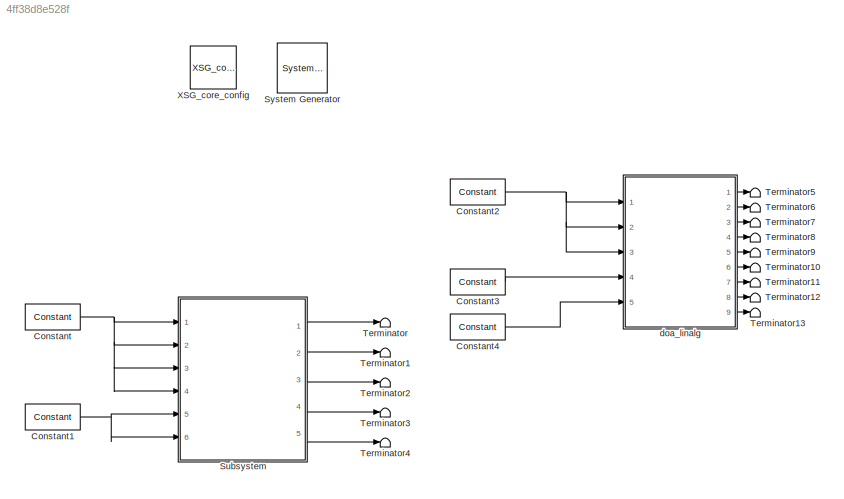
MODEL slx_4ff38d8e528f
KIND model
BLOCK [Reference]  System Generator  REF=xbsIndex_r4/ System Generator
  AttributesFormatString = System\nGenerator
  Impl_file = ISE Defaults
  Ports = []
  SourceBlock = xbsIndex_r4/ System Generator
  SourceType = Xilinx System Generator Block
  Synth_file = XST Defaults
  Tag = genX
  UserDataPersistent = on
  block_type = sysgen
  clock_wrapper = Clock Enables
  core_generation = According to Block Masks
  dbl_ovrd = According to Block Masks
  dcm_input_clock_period = 10
  deprecated_control = off
  directory = ./netlist
  eval_field = 0
  has_advanced_control = 0
  incr_netlist = off
  infoedit = System Generator
  package = fbg676
  part = xc7k325t
  proj_type = Project Navigator
  run_coregen = off
  sg_icon_stat = 50,50,0,0,token,white,0,58c5b5770fe5f7c311f53dbc6e73f0f6,right,,[ ],[ ]
  sg_mask_display = fprintf('','COMMENT: begin icon graphics');\npatch([0 50 50 0 0 ],[0 0 50 50 0 ],[1 1 1 ]);\npatch([1.6375 16.81 27.31 37.81 48.31 27.31 12.1375 1.6375 ],[36.655 36.655 47.155 36.655 47.155 47.155 47.155 36.655 ],[0.933333 0.203922 0.141176 ]);\npatch([12.1375 27.31 16.81 1.6375 12.1375 ],[26.155 26.155 36.655 36.655 26.155 ],[0.698039 0.0313725 0.219608 ]);\npatch([1.6375 16.81 27.31 12.1375 1.6375 ]...<+327ch>
  sggui_pos = -1,-1,-1,-1
  simulink_period = 1
  speed = -3
  synthesis_tool = XST
  sysclk_period = 10
  testbench = off
  trim_vbits = Everywhere in SubSystem
  xilinxfamily = Kintex7
BLOCK [Reference] Constant  REF=xbsIndex_r4/Constant
  Ports = [0, 1]
  SourceBlock = xbsIndex_r4/Constant
  SourceType = Xilinx Constant Block Block
  arith_type = Unsigned
  bin_pt = 0
  block_type = constant
  carry = CIN
  const = 1
  dbl_ovrd = off
  dsp48_infoedit = The use of this block for DSP48 instructions is deprecated.  Please use the Opmode block.
  equ = P=C
  exp_width = 8
  explicit_period = on
  frac_width = 24
  gui_display_data_type = Fixed-point
  has_advanced_control = 0
  inp1 = P
  inp2 = PCIN>>17
  n_bits = 18*4
  opr = +
  opselect = C
  period = 1
  preci_type = Single
  sg_icon_stat = 55,26,0,1,white,blue,0,1c72b5be,right,,[ ],[ ]
  sg_mask_display = fprintf('','COMMENT: begin icon graphics');\npatch([0 55 55 0 0 ],[0 0 26 26 0 ],[0.77 0.82 0.91 ]);\nplot([0 55 55 0 0 ],[0 0 26 26 0 ]);\npatch([20.325 24.66 27.66 30.66 33.66 27.66 23.325 20.325 ],[16.33 16.33 19.33 16.33 19.33 19.33 19.33 16.33 ],[1 1 1 ]);\npatch([23.325 27.66 24.66 20.325 23.325 ],[13.33 13.33 16.33 16.33 13.33 ],[0.931 0.946 0.973 ]);\npatch([20.325 24.66 27.66 23.325 20.325 ],[...<+323ch>  <repeated x5 — deduplicated; at blocks: Constant, Constant1, Constant2, Constant3, Constant4>
  sggui_pos = 77,39,337,463
BLOCK [Reference] Constant1  REF=xbsIndex_r4/Constant
  Ports = [0, 1]
  SourceBlock = xbsIndex_r4/Constant
  SourceType = Xilinx Constant Block Block
  arith_type = Boolean
  bin_pt = 0
  block_type = constant
  carry = CIN
  const = 1
  dbl_ovrd = off
  dsp48_infoedit = The use of this block for DSP48 instructions is deprecated.  Please use the Opmode block.
  equ = P=C
  exp_width = 8
  explicit_period = on
  frac_width = 24
  gui_display_data_type = Boolean
  has_advanced_control = 0
  inp1 = P
  inp2 = PCIN>>17
  n_bits = 18*4
  opr = +
  opselect = C
  period = 1
  preci_type = Single
  sg_icon_stat = 55,26,0,1,white,blue,0,1c72b5be,right,,[ ],[ ]
  sggui_pos = 67,31,337,463
BLOCK [Reference] Constant2  REF=xbsIndex_r4/Constant
  Ports = [0, 1]
  SourceBlock = xbsIndex_r4/Constant
  SourceType = Xilinx Constant Block Block
  arith_type = Signed (2's comp)
  bin_pt = 14
  block_type = constant
  carry = CIN
  const = 1
  dbl_ovrd = off
  dsp48_infoedit = The use of this block for DSP48 instructions is deprecated.  Please use the Opmode block.
  equ = P=C
  exp_width = 8
  explicit_period = on
  frac_width = 24
  gui_display_data_type = Fixed-point
  has_advanced_control = 0
  inp1 = P
  inp2 = PCIN>>17
  n_bits = 32
  opr = +
  opselect = C
  period = 1
  preci_type = Single
  sg_icon_stat = 55,26,0,1,white,blue,0,1c72b5be,right,,[ ],[ ]
  sggui_pos = 20,20,337,463
BLOCK [Reference] Constant3  REF=xbsIndex_r4/Constant
  Ports = [0, 1]
  SourceBlock = xbsIndex_r4/Constant
  SourceType = Xilinx Constant Block Block
  arith_type = Boolean
  bin_pt = 14
  block_type = constant
  carry = CIN
  const = 1
  dbl_ovrd = off
  dsp48_infoedit = The use of this block for DSP48 instructions is deprecated.  Please use the Opmode block.
  equ = P=C
  exp_width = 8
  explicit_period = on
  frac_width = 24
  gui_display_data_type = Boolean
  has_advanced_control = 0
  inp1 = P
  inp2 = PCIN>>17
  n_bits = 32
  opr = +
  opselect = C
  period = 1
  preci_type = Single
  sg_icon_stat = 55,26,0,1,white,blue,0,1c72b5be,right,,[ ],[ ]
  sggui_pos = 20,20,337,463
BLOCK [Reference] Constant4  REF=xbsIndex_r4/Constant
  Ports = [0, 1]
  SourceBlock = xbsIndex_r4/Constant
  SourceType = Xilinx Constant Block Block
  arith_type = Unsigned
  bin_pt = 0
  block_type = constant
  carry = CIN
  const = 1
  dbl_ovrd = off
  dsp48_infoedit = The use of this block for DSP48 instructions is deprecated.  Please use the Opmode block.
  equ = P=C
  exp_width = 8
  explicit_period = on
  frac_width = 24
  gui_display_data_type = Fixed-point
  has_advanced_control = 0
  inp1 = P
  inp2 = PCIN>>17
  n_bits = 4
  opr = +
  opselect = C
  period = 1
  preci_type = Single
  sg_icon_stat = 55,26,0,1,white,blue,0,1c72b5be,right,,[ ],[ ]
  sggui_pos = 20,20,337,463
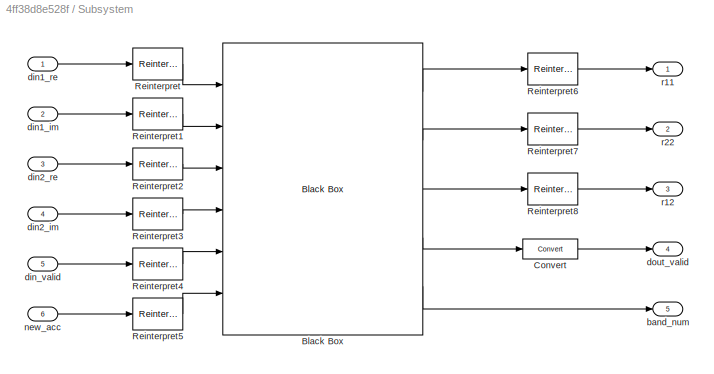
BLOCK [SubSystem] Subsystem
  FunctionWithSeparateData = off
  MaskHideContents = off
  MinAlgLoopOccurrences = off
  Opaque = off
  Ports = [6, 5]
  PropExecContextOutsideSubsystem = off
  RTWSystemCode = Auto
  RequestExecContextInheritance = off
BLOCK [Reference] Subsystem/Black Box  REF=xbsIndex_r4/Black Box
  Ports = [6, 5]
  SourceBlock = xbsIndex_r4/Black Box
  SourceType = Xilinx Black Box Block
  block_type = blackbox2
  has_advanced_control = 0
  infoedit = Incorporates black box HDL and simulation model into a System Generator design.<br><br>You must supply a Black Box with certain information about the HDL component you would like to bring into System Generator. This information is provided through a Matlab function.<br><br>When "Simulation mode" is set to "Inactive", you will typically want to provide a separate simulation model by using a Simulat...<+126ch>
  init_code = band_doa_no_la_config
  sg_icon_stat = 200,292,6,5,white,blue,0,0cbbbc98,right,,[ ],[ ]
  sg_mask_display = fprintf('','COMMENT: begin icon graphics');\npatch([0 200 200 0 0 ],[0 0 292 292 0 ],[0.77 0.82 0.91 ]);\nplot([0 200 200 0 0 ],[0 0 292 292 0 ]);\npatch([37.7 78.16 106.16 134.16 162.16 106.16 65.7 37.7 ],[177.08 177.08 205.08 177.08 205.08 205.08 205.08 177.08 ],[1 1 1 ]);\npatch([65.7 106.16 78.16 37.7 65.7 ],[149.08 149.08 177.08 177.08 149.08 ],[0.931 0.946 0.973 ]);\npatch([37.7 78.16 106.16 65.7...<+828ch>
  sggui_pos = -1,-1,-1,-1
  sim_method = Inactive
  verbose = off
  xl_area = [0,0,0,0,0,0,0]
  xl_use_area = off
BLOCK [Reference] Subsystem/Convert  REF=xbsIndex_r4/Convert
  Ports = [1, 1]
  SourceBlock = xbsIndex_r4/Convert
  SourceType = Xilinx Type Converter Block
  arith_type = Boolean
  bin_pt = 0
  block_type = convert
  block_version = 11.4
  dbl_ovrd = off
  en = off
  exp_bits = 8
  float_type = Single
  fraction_bits = 24
  gui_display_data_type = Boolean
  has_advanced_control = 0
  infoedit = Hardware notes: rounding and saturating require hardware resources; truncating and wrapping do not.
  latency = 0
  n_bits = 3
  overflow = Wrap
  pipeline = off
  quantization = Truncate
  sg_icon_stat = 55,20,1,1,white,blue,0,edca21da,right,,[ ],[ ]
  sg_mask_display = fprintf('','COMMENT: begin icon graphics');\npatch([0 55 55 0 0 ],[0 0 20 20 0 ],[0.77 0.82 0.91 ]);\nplot([0 55 55 0 0 ],[0 0 20 20 0 ]);\npatch([22.55 25.44 27.44 29.44 31.44 27.44 24.55 22.55 ],[12.22 12.22 14.22 12.22 14.22 14.22 14.22 12.22 ],[1 1 1 ]);\npatch([24.55 27.44 25.44 22.55 24.55 ],[10.22 10.22 12.22 12.22 10.22 ],[0.931 0.946 0.973 ]);\npatch([22.55 25.44 27.44 24.55 22.55 ],[8.22 8.22...<+309ch>
  sggui_pos = 57,19,636,624
  xl_area = [0,0,0,0,0,0,0]
  xl_use_area = off
BLOCK [Reference] Subsystem/Reinterpret  REF=xbsIndex_r4/Reinterpret
  Ports = [1, 1]
  SourceBlock = xbsIndex_r4/Reinterpret
  SourceType = Xilinx Type Reinterpreter Block
  arith_type = Unsigned
  bin_pt = acc_point
  block_type = reinterpret
  force_arith_type = on
  force_bin_pt = on
  has_advanced_control = 0
  infoedit = Changes signal type without altering the binary representation.   You can change the signal between signed and unsigned, and relocate the binary point.<br><br>Hardware notes: In hardware this block costs nothing.<br><br>Example:  Suppose the input is 6 bits wide, signed, with 2 fractional bits, and the output is forced to unsigned with 0 fractional bits.  Then an input of -2.0 (1110.00 in binary 2...<+58ch>  <repeated x14 — deduplicated; at blocks: Reinterpret, Reinterpret1, Reinterpret2, Reinterpret3, Reinterpret4, Reinterpret5, Reinterpret6, Reinterpret7, Reinterpret8>
  sg_icon_stat = 50,32,1,1,white,blue,0,6b04d0b0,right,,[ ],[ ]
  sg_mask_display = fprintf('','COMMENT: begin icon graphics');\npatch([0 50 50 0 0 ],[0 0 32 32 0 ],[0.77 0.82 0.91 ]);\nplot([0 50 50 0 0 ],[0 0 32 32 0 ]);\npatch([16.1 21.88 25.88 29.88 33.88 25.88 20.1 16.1 ],[20.44 20.44 24.44 20.44 24.44 24.44 24.44 20.44 ],[1 1 1 ]);\npatch([20.1 25.88 21.88 16.1 20.1 ],[16.44 16.44 20.44 20.44 16.44 ],[0.931 0.946 0.973 ]);\npatch([16.1 21.88 25.88 20.1 16.1 ],[12.44 12.44 16.44 ...<+294ch>  <repeated x14 — deduplicated; at blocks: Reinterpret, Reinterpret1, Reinterpret2, Reinterpret3, Reinterpret4, Reinterpret5, Reinterpret6, Reinterpret7, Reinterpret8>
  sggui_pos = 67,31,364,363
BLOCK [Reference] Subsystem/Reinterpret1  REF=xbsIndex_r4/Reinterpret
  Ports = [1, 1]
  SourceBlock = xbsIndex_r4/Reinterpret
  SourceType = Xilinx Type Reinterpreter Block
  arith_type = Unsigned
  bin_pt = 0
  block_type = reinterpret
  force_arith_type = on
  force_bin_pt = on
  has_advanced_control = 0
  sg_icon_stat = 50,32,1,1,white,blue,0,6b04d0b0,right,,[ ],[ ]
  sggui_pos = 77,39,364,363
BLOCK [Reference] Subsystem/Reinterpret2  REF=xbsIndex_r4/Reinterpret
  Ports = [1, 1]
  SourceBlock = xbsIndex_r4/Reinterpret
  SourceType = Xilinx Type Reinterpreter Block
  arith_type = Unsigned
  bin_pt = 0
  block_type = reinterpret
  force_arith_type = on
  force_bin_pt = on
  has_advanced_control = 0
  sg_icon_stat = 50,32,1,1,white,blue,0,6b04d0b0,right,,[ ],[ ]
  sggui_pos = 77,39,364,363
BLOCK [Reference] Subsystem/Reinterpret3  REF=xbsIndex_r4/Reinterpret
  Ports = [1, 1]
  SourceBlock = xbsIndex_r4/Reinterpret
  SourceType = Xilinx Type Reinterpreter Block
  arith_type = Unsigned
  bin_pt = 0
  block_type = reinterpret
  force_arith_type = on
  force_bin_pt = on
  has_advanced_control = 0
  sg_icon_stat = 50,32,1,1,white,blue,0,6b04d0b0,right,,[ ],[ ]
  sggui_pos = 77,39,364,363
BLOCK [Reference] Subsystem/Reinterpret4  REF=xbsIndex_r4/Reinterpret
  Ports = [1, 1]
  SourceBlock = xbsIndex_r4/Reinterpret
  SourceType = Xilinx Type Reinterpreter Block
  arith_type = Unsigned
  bin_pt = 0
  block_type = reinterpret
  force_arith_type = on
  force_bin_pt = on
  has_advanced_control = 0
  sg_icon_stat = 50,32,1,1,white,blue,0,6b04d0b0,right,,[ ],[ ]
  sggui_pos = 77,39,364,363
BLOCK [Reference] Subsystem/Reinterpret5  REF=xbsIndex_r4/Reinterpret
  Ports = [1, 1]
  SourceBlock = xbsIndex_r4/Reinterpret
  SourceType = Xilinx Type Reinterpreter Block
  arith_type = Unsigned
  bin_pt = 0
  block_type = reinterpret
  force_arith_type = on
  force_bin_pt = on
  has_advanced_control = 0
  sg_icon_stat = 50,32,1,1,white,blue,0,6b04d0b0,right,,[ ],[ ]
  sggui_pos = 77,39,364,363
BLOCK [Reference] Subsystem/Reinterpret6  REF=xbsIndex_r4/Reinterpret
  Ports = [1, 1]
  SourceBlock = xbsIndex_r4/Reinterpret
  SourceType = Xilinx Type Reinterpreter Block
  arith_type = Signed  (2's comp)
  bin_pt = 0
  block_type = reinterpret
  force_arith_type = on
  force_bin_pt = on
  has_advanced_control = 0
  sg_icon_stat = 50,32,1,1,white,blue,0,6b04d0b0,right,,[ ],[ ]
  sggui_pos = 67,31,364,363
BLOCK [Reference] Subsystem/Reinterpret7  REF=xbsIndex_r4/Reinterpret
  Ports = [1, 1]
  SourceBlock = xbsIndex_r4/Reinterpret
  SourceType = Xilinx Type Reinterpreter Block
  arith_type = Signed  (2's comp)
  bin_pt = acc_point
  block_type = reinterpret
  force_arith_type = on
  force_bin_pt = on
  has_advanced_control = 0
  sg_icon_stat = 50,32,1,1,white,blue,0,6b04d0b0,right,,[ ],[ ]
  sggui_pos = 67,31,364,363
BLOCK [Reference] Subsystem/Reinterpret8  REF=xbsIndex_r4/Reinterpret
  Ports = [1, 1]
  SourceBlock = xbsIndex_r4/Reinterpret
  SourceType = Xilinx Type Reinterpreter Block
  arith_type = Signed  (2's comp)
  bin_pt = acc_point
  block_type = reinterpret
  force_arith_type = on
  force_bin_pt = on
  has_advanced_control = 0
  sg_icon_stat = 50,32,1,1,white,blue,0,6b04d0b0,right,,[ ],[ ]
  sggui_pos = 67,31,364,363
BLOCK [Outport] Subsystem/band_num
  IconDisplay = Port number
  Port = 5
BLOCK [Inport] Subsystem/din1_im
  IconDisplay = Port number
  Port = 2
BLOCK [Inport] Subsystem/din1_re
  IconDisplay = Port number
BLOCK [Inport] Subsystem/din2_im
  IconDisplay = Port number
  Port = 4
BLOCK [Inport] Subsystem/din2_re
  IconDisplay = Port number
  Port = 3
BLOCK [Inport] Subsystem/din_valid
  IconDisplay = Port number
  Port = 5
BLOCK [Outport] Subsystem/dout_valid
  IconDisplay = Port number
  Port = 4
BLOCK [Inport] Subsystem/new_acc
  IconDisplay = Port number
  Port = 6
BLOCK [Outport] Subsystem/r11
  IconDisplay = Port number
BLOCK [Outport] Subsystem/r12
  IconDisplay = Port number
  Port = 3
BLOCK [Outport] Subsystem/r22
  IconDisplay = Port number
  Port = 2
BLOCK [Terminator] Terminator
BLOCK [Terminator] Terminator1
BLOCK [Terminator] Terminator10
BLOCK [Terminator] Terminator11
BLOCK [Terminator] Terminator12
BLOCK [Terminator] Terminator13
BLOCK [Terminator] Terminator2
BLOCK [Terminator] Terminator3
BLOCK [Terminator] Terminator4
BLOCK [Terminator] Terminator5
BLOCK [Terminator] Terminator6
BLOCK [Terminator] Terminator7
BLOCK [Terminator] Terminator8
BLOCK [Terminator] Terminator9
BLOCK [Reference] XSG_core_config  REF=xps_library/XSG_core_config  (lib defined in mdl_00b5cec29cd0, mdl_02ab6ecaa3d1, +5 more)
  MKDIG_clk_src = sys_clk
  Ports = []
  ROACH2_clk_src = sys_clk
  ROACH_clk_src = sys_clk
  SourceBlock = xps_library/XSG_core_config
  SourceType = xsg core config
  Tag = xps:xsg
  clk_rate = 100
  clk_src = sys_clk
  hw_sys = ROACH2:sx475t
  sample_period = 1
  synthesis_tool = XST
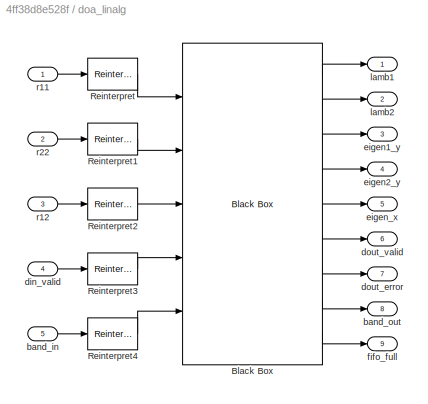
BLOCK [SubSystem] doa_linalg
  FunctionWithSeparateData = off
  MaskHideContents = off
  MinAlgLoopOccurrences = off
  Opaque = off
  Ports = [5, 9]
  PropExecContextOutsideSubsystem = off
  RTWSystemCode = Auto
  RequestExecContextInheritance = off
BLOCK [Reference] doa_linalg/Black Box  REF=xbsIndex_r4/Black Box
  Ports = [5, 9]
  SourceBlock = xbsIndex_r4/Black Box
  SourceType = Xilinx Black Box Block
  block_type = blackbox2
  has_advanced_control = 0
  infoedit = Incorporates black box HDL and simulation model into a System Generator design.<br><br>You must supply a Black Box with certain information about the HDL component you would like to bring into System Generator. This information is provided through a Matlab function.<br><br>When "Simulation mode" is set to "Inactive", you will typically want to provide a separate simulation model by using a Simulat...<+126ch>
  init_code = quad_eigen_iterative_config
  sg_icon_stat = 140,322,5,9,white,blue,0,2b7a7f4d,right,,[ ],[ ]
  sg_mask_display = fprintf('','COMMENT: begin icon graphics');\npatch([0 140 140 0 0 ],[0 0 322 322 0 ],[0.77 0.82 0.91 ]);\nplot([0 140 140 0 0 ],[0 0 322 322 0 ]);\npatch([25.5 54.4 74.4 94.4 114.4 74.4 45.5 25.5 ],[183.2 183.2 203.2 183.2 203.2 203.2 203.2 183.2 ],[1 1 1 ]);\npatch([45.5 74.4 54.4 25.5 45.5 ],[163.2 163.2 183.2 183.2 163.2 ],[0.931 0.946 0.973 ]);\npatch([25.5 54.4 74.4 45.5 25.5 ],[143.2 143.2 163.2 ...<+935ch>
  sggui_pos = -1,-1,-1,-1
  sim_method = Inactive
  verbose = off
  xl_area = [0,0,0,0,0,0,0]
  xl_use_area = off
BLOCK [Reference] doa_linalg/Reinterpret  REF=xbsIndex_r4/Reinterpret
  Ports = [1, 1]
  SourceBlock = xbsIndex_r4/Reinterpret
  SourceType = Xilinx Type Reinterpreter Block
  arith_type = Unsigned
  bin_pt = 0
  block_type = reinterpret
  force_arith_type = on
  force_bin_pt = on
  has_advanced_control = 0
  sg_icon_stat = 50,32,1,1,white,blue,0,6b04d0b0,right,,[ ],[ ]
  sggui_pos = 77,39,364,363
BLOCK [Reference] doa_linalg/Reinterpret1  REF=xbsIndex_r4/Reinterpret
  Ports = [1, 1]
  SourceBlock = xbsIndex_r4/Reinterpret
  SourceType = Xilinx Type Reinterpreter Block
  arith_type = Unsigned
  bin_pt = 0
  block_type = reinterpret
  force_arith_type = on
  force_bin_pt = on
  has_advanced_control = 0
  sg_icon_stat = 50,32,1,1,white,blue,0,6b04d0b0,right,,[ ],[ ]
  sggui_pos = 77,39,364,363
BLOCK [Reference] doa_linalg/Reinterpret2  REF=xbsIndex_r4/Reinterpret
  Ports = [1, 1]
  SourceBlock = xbsIndex_r4/Reinterpret
  SourceType = Xilinx Type Reinterpreter Block
  arith_type = Unsigned
  bin_pt = 0
  block_type = reinterpret
  force_arith_type = on
  force_bin_pt = on
  has_advanced_control = 0
  sg_icon_stat = 50,32,1,1,white,blue,0,6b04d0b0,right,,[ ],[ ]
  sggui_pos = 77,39,364,363
BLOCK [Reference] doa_linalg/Reinterpret3  REF=xbsIndex_r4/Reinterpret
  Ports = [1, 1]
  SourceBlock = xbsIndex_r4/Reinterpret
  SourceType = Xilinx Type Reinterpreter Block
  arith_type = Unsigned
  bin_pt = 0
  block_type = reinterpret
  force_arith_type = on
  force_bin_pt = on
  has_advanced_control = 0
  sg_icon_stat = 50,32,1,1,white,blue,0,6b04d0b0,right,,[ ],[ ]
  sggui_pos = 77,39,364,363
BLOCK [Reference] doa_linalg/Reinterpret4  REF=xbsIndex_r4/Reinterpret
  Ports = [1, 1]
  SourceBlock = xbsIndex_r4/Reinterpret
  SourceType = Xilinx Type Reinterpreter Block
  arith_type = Unsigned
  bin_pt = 0
  block_type = reinterpret
  force_arith_type = on
  force_bin_pt = on
  has_advanced_control = 0
  sg_icon_stat = 50,32,1,1,white,blue,0,6b04d0b0,right,,[ ],[ ]
  sggui_pos = 77,39,364,363
BLOCK [Inport] doa_linalg/band_in
  IconDisplay = Port number
  Port = 5
BLOCK [Outport] doa_linalg/band_out
  IconDisplay = Port number
  Port = 8
BLOCK [Inport] doa_linalg/din_valid
  IconDisplay = Port number
  Port = 4
BLOCK [Outport] doa_linalg/dout_error
  IconDisplay = Port number
  Port = 7
BLOCK [Outport] doa_linalg/dout_valid
  IconDisplay = Port number
  Port = 6
BLOCK [Outport] doa_linalg/eigen1_y
  IconDisplay = Port number
  Port = 3
BLOCK [Outport] doa_linalg/eigen2_y
  IconDisplay = Port number
  Port = 4
BLOCK [Outport] doa_linalg/eigen_x
  IconDisplay = Port number
  Port = 5
BLOCK [Outport] doa_linalg/fifo_full
  IconDisplay = Port number
  Port = 9
BLOCK [Outport] doa_linalg/lamb1
  IconDisplay = Port number
BLOCK [Outport] doa_linalg/lamb2
  IconDisplay = Port number
  Port = 2
BLOCK [Inport] doa_linalg/r11
  IconDisplay = Port number
BLOCK [Inport] doa_linalg/r12
  IconDisplay = Port number
  Port = 3
BLOCK [Inport] doa_linalg/r22
  IconDisplay = Port number
  Port = 2
NET Constant1:1 -> Subsystem:5, Subsystem:6
NET Constant2:1 -> doa_linalg:1, doa_linalg:2, doa_linalg:3
LINE Constant3:1 -> doa_linalg:4
LINE Constant4:1 -> doa_linalg:5
NET Constant:1 -> Subsystem:1, Subsystem:2, Subsystem:3, Subsystem:4
LINE Subsystem/Black Box:1 -> Subsystem/Reinterpret6:1
LINE Subsystem/Black Box:2 -> Subsystem/Reinterpret7:1
LINE Subsystem/Black Box:3 -> Subsystem/Reinterpret8:1
LINE Subsystem/Black Box:4 -> Subsystem/Convert:1
LINE Subsystem/Black Box:5 -> Subsystem/band_num:1
LINE Subsystem/Convert:1 -> Subsystem/dout_valid:1
LINE Subsystem/Reinterpret1:1 -> Subsystem/Black Box:2
LINE Subsystem/Reinterpret2:1 -> Subsystem/Black Box:3
LINE Subsystem/Reinterpret3:1 -> Subsystem/Black Box:4
LINE Subsystem/Reinterpret4:1 -> Subsystem/Black Box:5
LINE Subsystem/Reinterpret5:1 -> Subsystem/Black Box:6
LINE Subsystem/Reinterpret6:1 -> Subsystem/r11:1
LINE Subsystem/Reinterpret7:1 -> Subsystem/r22:1
LINE Subsystem/Reinterpret8:1 -> Subsystem/r12:1
LINE Subsystem/Reinterpret:1 -> Subsystem/Black Box:1
LINE Subsystem/din1_im:1 -> Subsystem/Reinterpret1:1
LINE Subsystem/din1_re:1 -> Subsystem/Reinterpret:1
LINE Subsystem/din2_im:1 -> Subsystem/Reinterpret3:1
LINE Subsystem/din2_re:1 -> Subsystem/Reinterpret2:1
LINE Subsystem/din_valid:1 -> Subsystem/Reinterpret4:1
LINE Subsystem/new_acc:1 -> Subsystem/Reinterpret5:1
LINE Subsystem:1 -> Terminator:1
LINE Subsystem:2 -> Terminator1:1
LINE Subsystem:3 -> Terminator2:1
LINE Subsystem:4 -> Terminator3:1
LINE Subsystem:5 -> Terminator4:1
LINE doa_linalg/Black Box:1 -> doa_linalg/lamb1:1
LINE doa_linalg/Black Box:2 -> doa_linalg/lamb2:1
LINE doa_linalg/Black Box:3 -> doa_linalg/eigen1_y:1
LINE doa_linalg/Black Box:4 -> doa_linalg/eigen2_y:1
LINE doa_linalg/Black Box:5 -> doa_linalg/eigen_x:1
LINE doa_linalg/Black Box:6 -> doa_linalg/dout_valid:1
LINE doa_linalg/Black Box:7 -> doa_linalg/dout_error:1
LINE doa_linalg/Black Box:8 -> doa_linalg/band_out:1
LINE doa_linalg/Black Box:9 -> doa_linalg/fifo_full:1
LINE doa_linalg/Reinterpret1:1 -> doa_linalg/Black Box:2
LINE doa_linalg/Reinterpret2:1 -> doa_linalg/Black Box:3
LINE doa_linalg/Reinterpret3:1 -> doa_linalg/Black Box:4
LINE doa_linalg/Reinterpret4:1 -> doa_linalg/Black Box:5
LINE doa_linalg/Reinterpret:1 -> doa_linalg/Black Box:1
LINE doa_linalg/band_in:1 -> doa_linalg/Reinterpret4:1
LINE doa_linalg/din_valid:1 -> doa_linalg/Reinterpret3:1
LINE doa_linalg/r11:1 -> doa_linalg/Reinterpret:1
LINE doa_linalg/r12:1 -> doa_linalg/Reinterpret2:1
LINE doa_linalg/r22:1 -> doa_linalg/Reinterpret1:1
LINE doa_linalg:1 -> Terminator5:1
LINE doa_linalg:2 -> Terminator6:1
LINE doa_linalg:3 -> Terminator7:1
LINE doa_linalg:4 -> Terminator8:1
LINE doa_linalg:5 -> Terminator9:1
LINE doa_linalg:6 -> Terminator10:1
LINE doa_linalg:7 -> Terminator11:1
LINE doa_linalg:8 -> Terminator12:1
LINE doa_linalg:9 -> Terminator13:1
note: NET lines group one-source signal fan-out (src -> all destinations, sorted); 1:1 wires keep LINE
